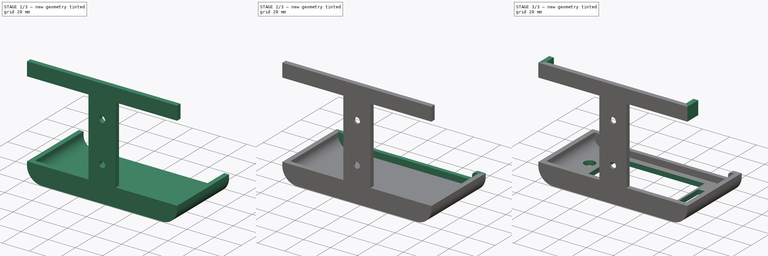
[diagram: build sequence overview — one tinted view per stage of 3, left to right]
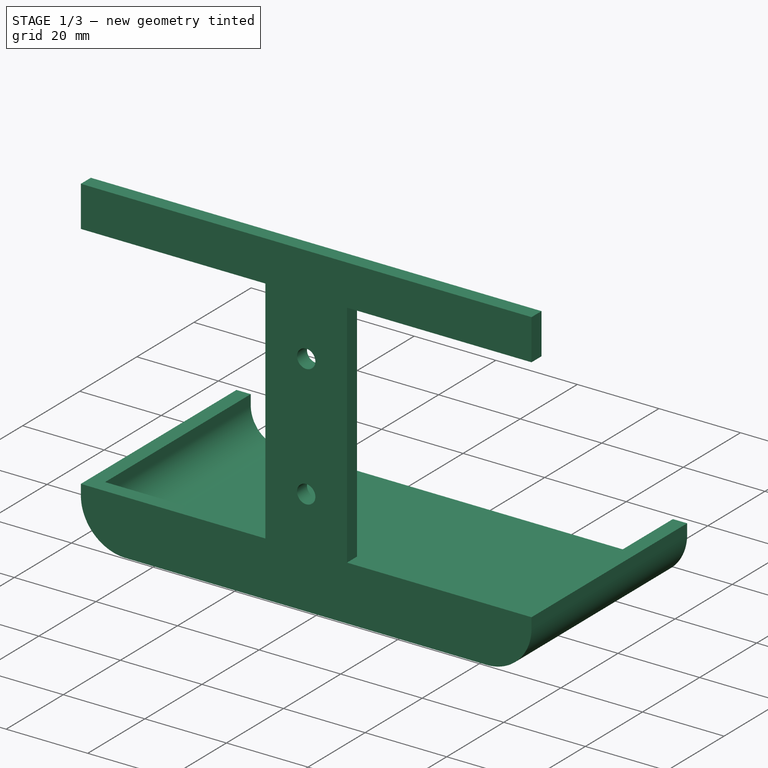
[diagram: stage 1 of 3 — iso view after this stage's code; geometry added in this stage tinted green]
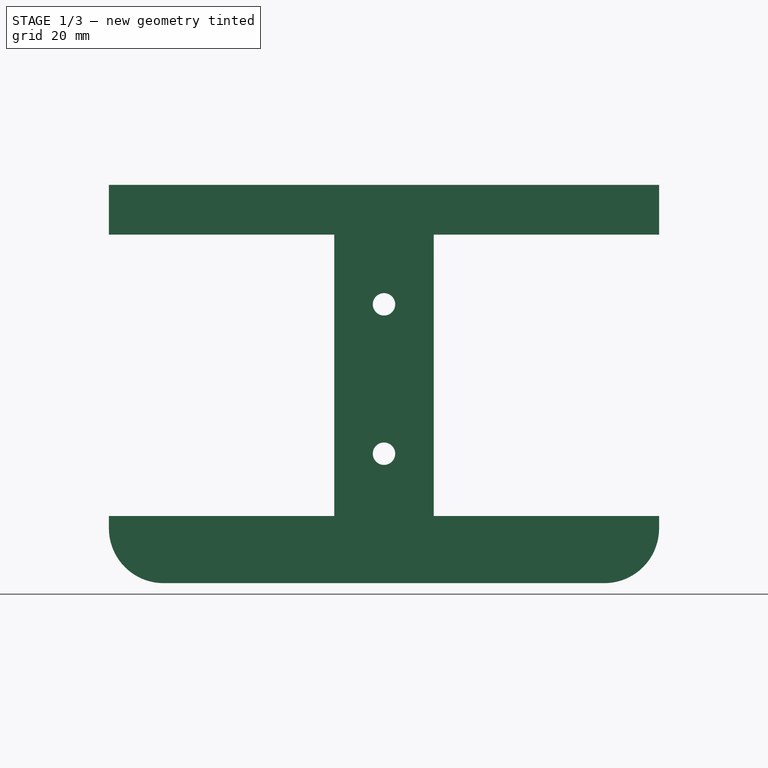
[diagram: stage 1 of 3 — front view after this stage's code; geometry added in this stage tinted green]
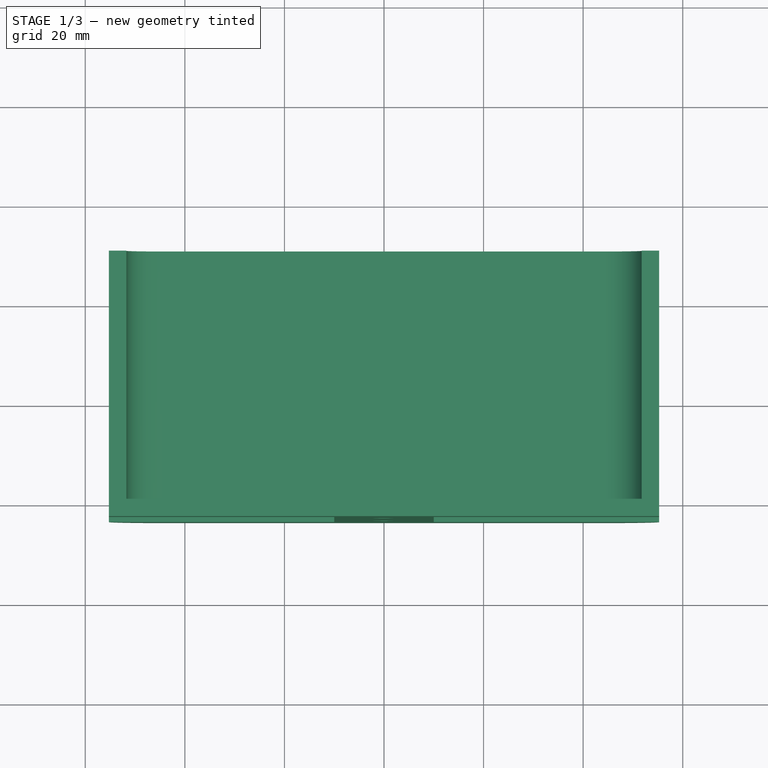
[diagram: stage 1 of 3 — top view after this stage's code; geometry added in this stage tinted green]
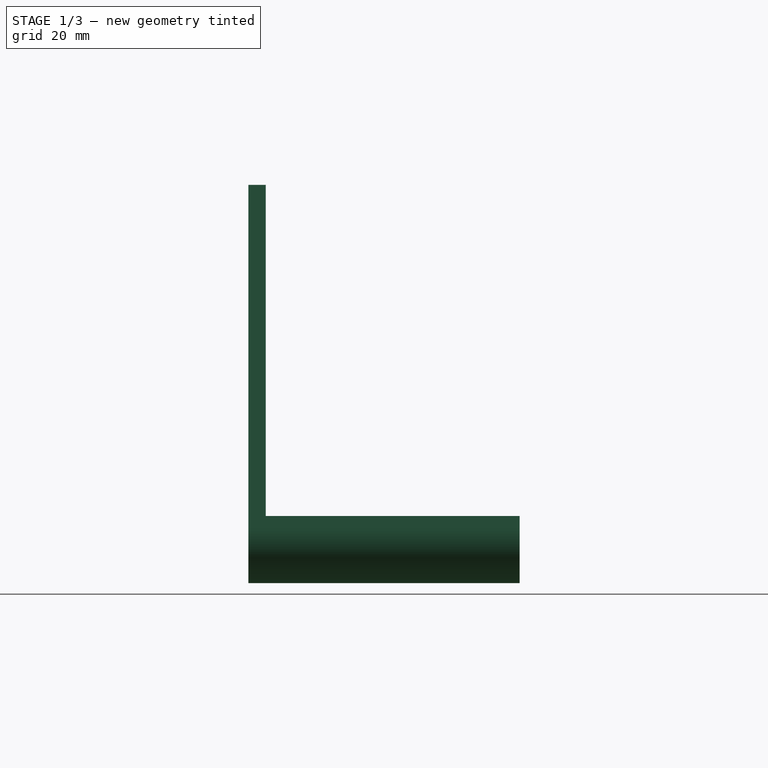
[diagram: stage 1 of 3 — right view after this stage's code; geometry added in this stage tinted green]
FCSTD DOCUMENT  (FreeCAD 1.1RUnknown)
Label: Altruist_Wall_Mount
License: All rights reserved
LicenseURL: https://en.wikipedia.org/wiki/All_rights_reserved
objects: Sketcher::SketchObject×5, PartDesign::Pad×4, PartDesign::Chamfer×1, PartDesign::Pocket×1, App::Point×1, PartDesign::Body×1
note: 29 computed .brp shape members not serialized (recipe doc carries the construction recipe); baked Part::Feature solids carry a one-line shape summary decoded from their .brp

FEATURE [Sketcher::SketchObject] Sketch067
  ArcFitTolerance = 1e-06
  AttachmentSupport = -> [XZ_Plane012]
  ExternalTypes = [0]
  FullyConstrained = true
  MakeInternals = false
  MapMode = 5
  Placement = pos=(0,0,0) rot=(1,0,0;1.5708rad)
  _ExternalGeoVersion = 0
  sketch-geometry (16):
    g0: LineSegment StartX=55.25 StartY=24 StartZ=0 EndX=-55.25 EndY=24 EndZ=0
    g1: LineSegment StartX=-55.25 StartY=24 StartZ=0 EndX=-55.25 EndY=14 EndZ=0
    g2: LineSegment StartX=-55.25 StartY=14 StartZ=0 EndX=-10 EndY=14 EndZ=0
    g3: LineSegment StartX=-10 StartY=14 StartZ=0 EndX=-10 EndY=-42.5 EndZ=0
    g4: LineSegment StartX=-10 StartY=-42.5 StartZ=0 EndX=-55.25 EndY=-42.5 EndZ=0
    g5: LineSegment StartX=-55.25 StartY=-42.5 StartZ=0 EndX=-55.25 EndY=-45 EndZ=0
    g6: LineSegment StartX=55.25 StartY=24 StartZ=0 EndX=55.25 EndY=14 EndZ=0
    g7: LineSegment StartX=55.25 StartY=14 StartZ=0 EndX=10 EndY=14 EndZ=0
    g8: LineSegment StartX=10 StartY=14 StartZ=0 EndX=10 EndY=-42.5 EndZ=0
    g9: LineSegment StartX=10 StartY=-42.5 StartZ=0 EndX=55.25 EndY=-42.5 EndZ=0
    g10: LineSegment StartX=55.25 StartY=-42.5 StartZ=0 EndX=55.25 EndY=-45 EndZ=0
    g11: ArcOfCircle CenterX=44.25 CenterY=-45 CenterZ=0 NormalX=0 NormalY=0 NormalZ=1 AngleXU=0 Radius=11 StartAngle=4.71239 EndAngle=6.28319
    g12: ArcOfCircle CenterX=-44.25 CenterY=-45 CenterZ=0 NormalX=0 NormalY=0 NormalZ=1 AngleXU=0 Radius=11 StartAngle=3.14159 EndAngle=4.71239
    g13: LineSegment StartX=44.25 StartY=-56 StartZ=0 EndX=-44.25 EndY=-56 EndZ=0
    g14: Circle CenterX=0 CenterY=0 CenterZ=0 NormalX=0 NormalY=0 NormalZ=1 AngleXU=0 Radius=2.25
    g15: Circle CenterX=0 CenterY=-30 CenterZ=0 NormalX=0 NormalY=0 NormalZ=1 AngleXU=0 Radius=2.25
  constraints (47):
    c: Horizontal(g0)
    c: Coincident(g0,g1)
    c: Vertical(g1)
    c: Coincident(g1,g2)
    c: Horizontal(g2)
    c: Coincident(g2,g3)
    c: Vertical(g3)
    c: Coincident(g3,g4)
    c: Horizontal(g4)
    c: Coincident(g4,g5)
    c: Vertical(g5)
    c: Coincident(g0,g6)
    c: Vertical(g6)
    c: Coincident(g6,g7)
    c: Horizontal(g7)
    c: Coincident(g7,g8)
    c: Vertical(g8)
    c: Coincident(g8,g9)
    c: Horizontal(g9)
    c: Coincident(g9,g10)
    c: Vertical(g10)
    c: Coincident(g11,g10)
    c: Coincident(g12,g5)
    c: Coincident(g13,g11)
    c: Coincident(g13,g12)
    c: Horizontal(g13)
    c: Symmetric(g7,g2,g-2)
    c: Distance(g3,g8) = 20
    c: Distance(g13,g0) = 80
    c: Horizontal(g10,g11)
    c: Horizontal(g12,g5)
    c: Vertical(g12,g12)
    c: Vertical(g11,g11)
    c: Equal(g12,g11)
    c: Distance(g-1,g13) = 56
    c: Symmetric(g9,g4,g-2)
    c: Distance(g13,g4) = 13.5
    c: DistanceY(g1,g1) = 10
    c: Vertical(g1,g4)
    c: Vertical(g6,g9)
    c: DistanceX(g0,g0) = 110.5
    c: Coincident(g14,g-1)
    c: PointOnObject(g15,g-2)
    c: Equal(g15,g14)
    c: DistanceY(g15,g-1) = 30
    c: Diameter(g14) = 4.5
    c: Radius(g12) = 11
FEATURE [PartDesign::Pad] Pad050
  Direction = (0,-1,2e-16)
  Length = 3.5
  Length2 = 10
  Placement = pos=(0,0,0) rot=(1,0,0;1.5708rad)
  Profile = -> Sketch067
  ReferenceAxis = -> Sketch067 [N_Axis]
  Refine = true
  SideType = 0
  Suppressed = false
  Type = 0
  Type2 = 0
FEATURE [Sketcher::SketchObject] Sketch068
  ArcFitTolerance = 1e-06
  AttachmentSupport = -> [Pad050]
  ExternalTypes = [0]
  FullyConstrained = true
  MakeInternals = false
  MapMode = 5
  Placement = pos=(0,-3.3e-15,0) rot=(-1,0,0;1.5708rad)
  _ExternalGeoVersion = 0
  sketch-geometry (12):
    g0: LineSegment StartX=-55.25 StartY=45 StartZ=0 EndX=-55.25 EndY=42.5 EndZ=0
    g1: LineSegment StartX=-44.25 StartY=56 StartZ=0 EndX=44.25 EndY=56 EndZ=0
    g2: LineSegment StartX=-44.25 StartY=52.5 StartZ=0 EndX=44.25 EndY=52.5 EndZ=0
    g3: LineSegment StartX=-55.25 StartY=42.5 StartZ=0 EndX=-51.75 EndY=42.5 EndZ=0
    g4: LineSegment StartX=55.25 StartY=45 StartZ=0 EndX=55.25 EndY=42.5 EndZ=0
    g5: LineSegment StartX=55.25 StartY=42.5 StartZ=0 EndX=51.75 EndY=42.5 EndZ=0
    g6: LineSegment StartX=51.75 StartY=42.5 StartZ=0 EndX=51.75 EndY=45 EndZ=0
    g7: LineSegment StartX=-51.75 StartY=42.5 StartZ=0 EndX=-51.75 EndY=45 EndZ=0
    g8: ArcOfCircle CenterX=-44.25 CenterY=45 CenterZ=0 NormalX=0 NormalY=0 NormalZ=1 AngleXU=0 Radius=7.5 StartAngle=1.5708 EndAngle=3.14159
    g9: ArcOfCircle CenterX=44.25 CenterY=45 CenterZ=0 NormalX=0 NormalY=0 NormalZ=1 AngleXU=0 Radius=7.5 StartAngle=0 EndAngle=1.5708
    g10: ArcOfCircle CenterX=44.25 CenterY=45 CenterZ=0 NormalX=0 NormalY=0 NormalZ=1 AngleXU=0 Radius=11 StartAngle=0 EndAngle=1.5708
    g11: ArcOfCircle CenterX=-44.25 CenterY=45 CenterZ=0 NormalX=0 NormalY=0 NormalZ=1 AngleXU=0 Radius=11 StartAngle=1.5708 EndAngle=3.14159
  constraints (37):
    c: Vertical(g0)
    c: Horizontal(g1)
    c: Coincident(g3,g0)
    c: Horizontal(g3)
    c: Vertical(g4)
    c: Coincident(g5,g4)
    c: Horizontal(g5)
    c: Coincident(g6,g5)
    c: Vertical(g6)
    c: Coincident(g7,g3)
    c: Vertical(g7)
    c: Coincident(g8,g7)
    c: Coincident(g8,g2)
    c: Coincident(g9,g2)
    c: Coincident(g9,g6)
    c: Coincident(g10,g9)
    c: Coincident(g10,g1)
    c: Coincident(g10,g4)
    c: Coincident(g11,g8)
    c: Coincident(g11,g0)
    c: Coincident(g11,g1)
    c: Vertical(g10,g2)
    c: Vertical(g1,g9)
    c: Horizontal(g6,g9)
    c: Horizontal(g4,g9)
    c: Horizontal(g7,g8)
    c: Horizontal(g0,g8)
    c: Vertical(g8,g2)
    c: Vertical(g1,g8)
    c: Radius(g11) = 11
    c: Radius(g8) = 7.5
    c: Distance(g1,g-1) = 56
    c: Equal(g8,g9)
    c: Horizontal(g5,g3)
    c: DistanceY(g4,g4) = 2.5
    c: Distance(g6,g7) = 103.5
    c: Symmetric(g2,g2,g-2)
FEATURE [PartDesign::Pad] Pad051
  BaseFeature = -> Pad050
  Direction = (0,1,2e-16)
  Length = 51
  Length2 = 10
  Placement = pos=(0,0,0) rot=(1,0,0;1.5708rad)
  Profile = -> Sketch068
  ReferenceAxis = -> Sketch068 [N_Axis]
  Refine = true
  SideType = 0
  Suppressed = false
  Type = 0
  Type2 = 0
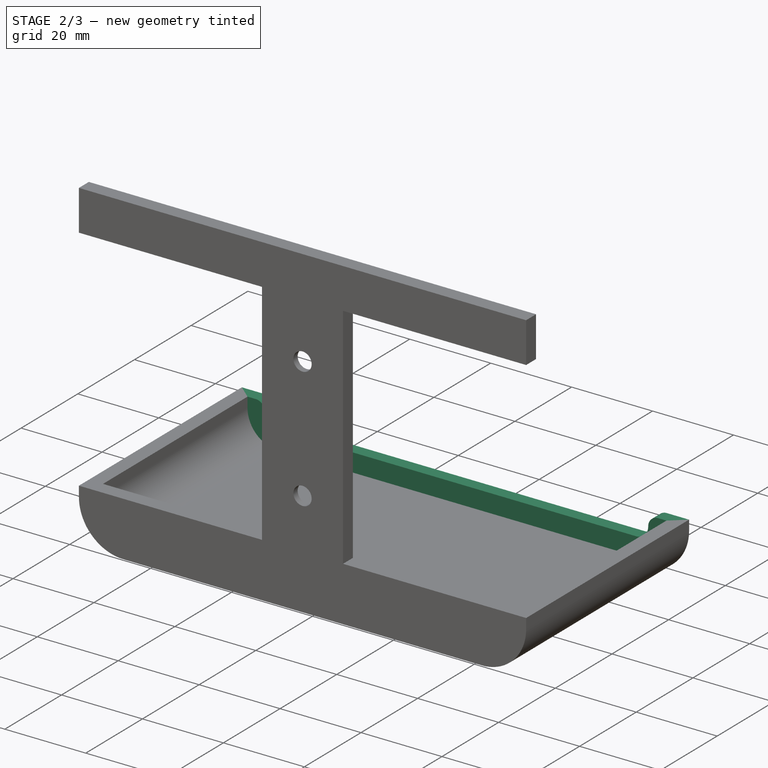
[diagram: stage 2 of 3 — iso view after this stage's code; geometry added in this stage tinted green]
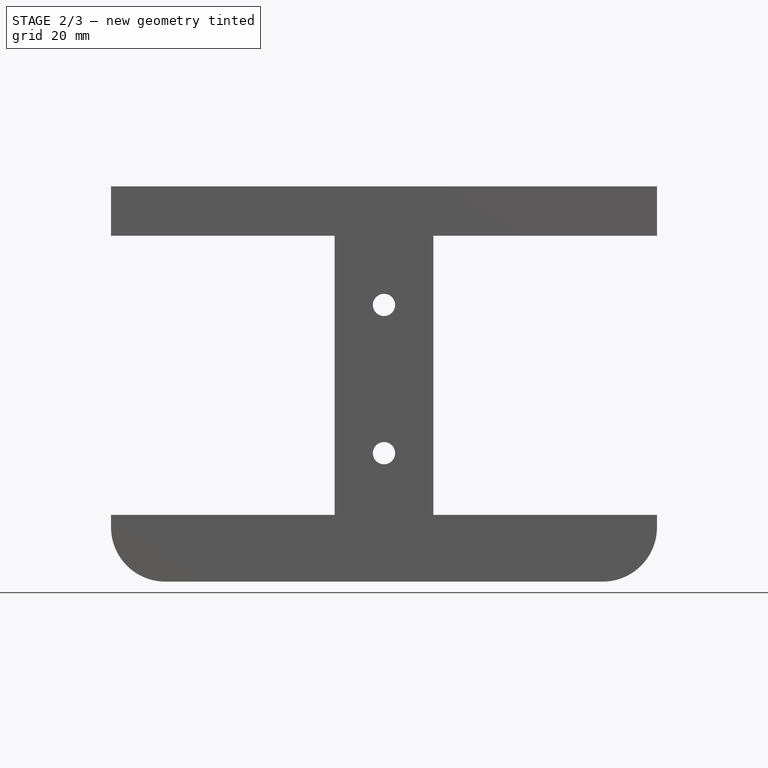
[diagram: stage 2 of 3 — front view after this stage's code; geometry added in this stage tinted green]
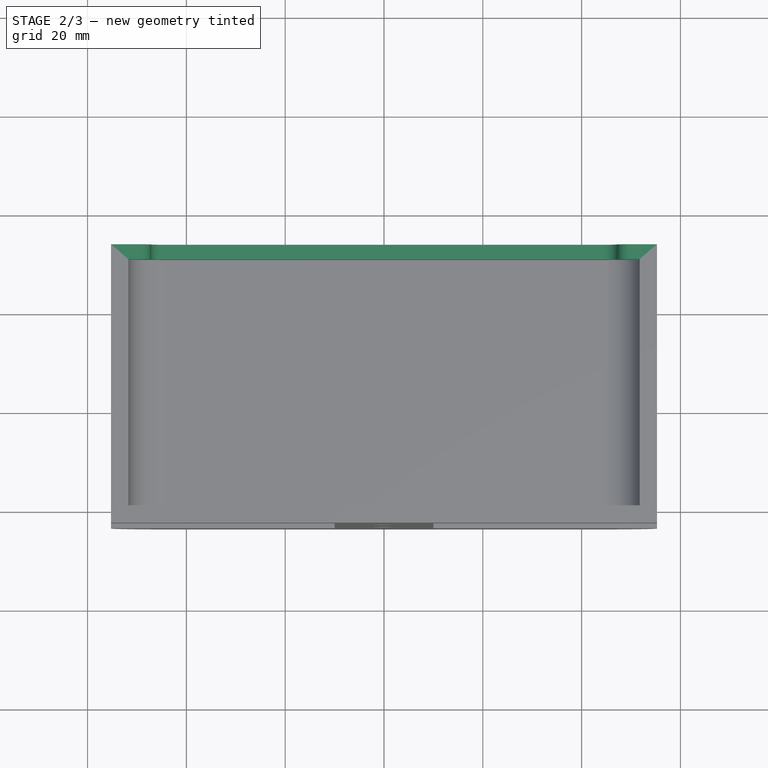
[diagram: stage 2 of 3 — top view after this stage's code; geometry added in this stage tinted green]
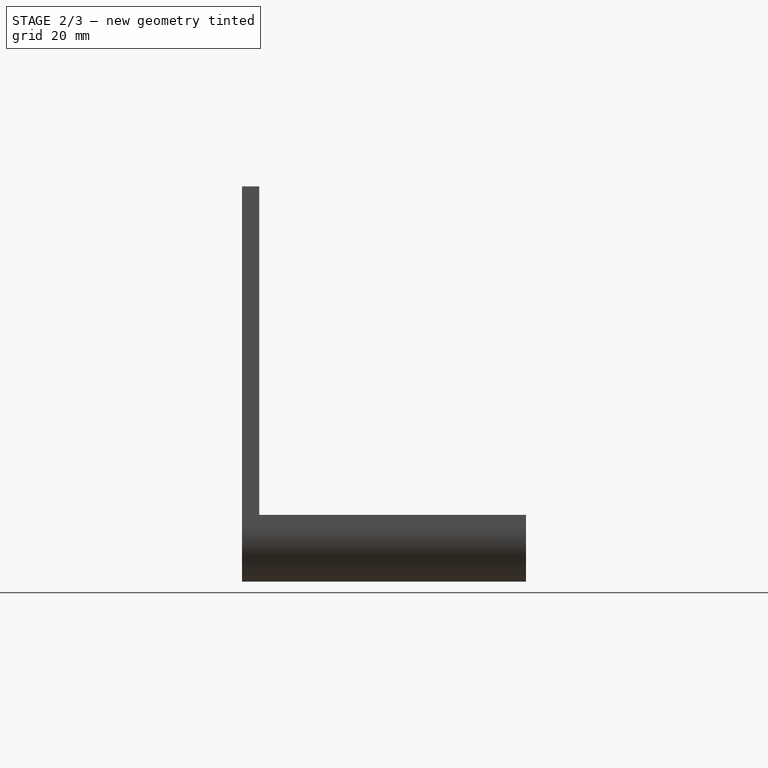
[diagram: stage 2 of 3 — right view after this stage's code; geometry added in this stage tinted green]
FEATURE [Sketcher::SketchObject] Sketch071
  ArcFitTolerance = 1e-06
  AttachmentSupport = -> [Pad051]
  ExternalTypes = [0]
  FullyConstrained = true
  MakeInternals = false
  MapMode = 5
  Placement = pos=(0,-3.3e-15,0) rot=(-1,0,0;1.5708rad)
  _ExternalGeoVersion = 0
  sketch-geometry (8):
    g0: LineSegment StartX=-55.25 StartY=-14 StartZ=0 EndX=-55.25 EndY=-24 EndZ=0
    g1: LineSegment StartX=-55.25 StartY=-24 StartZ=0 EndX=-51.75 EndY=-24 EndZ=0
    g2: LineSegment StartX=-51.75 StartY=-24 StartZ=0 EndX=-51.75 EndY=-14 EndZ=0
    g3: LineSegment StartX=-51.75 StartY=-14 StartZ=0 EndX=-55.25 EndY=-14 EndZ=0
    g4: LineSegment StartX=51.75 StartY=-14 StartZ=0 EndX=51.75 EndY=-24 EndZ=0
    g5: LineSegment StartX=51.75 StartY=-24 StartZ=0 EndX=55.25 EndY=-24 EndZ=0
    g6: LineSegment StartX=55.25 StartY=-24 StartZ=0 EndX=55.25 EndY=-14 EndZ=0
    g7: LineSegment StartX=55.25 StartY=-14 StartZ=0 EndX=51.75 EndY=-14 EndZ=0
  constraints (23):
    c: Coincident(g0,g1)
    c: Coincident(g1,g2)
    c: Coincident(g2,g3)
    c: Coincident(g3,g0)
    c: Vertical(g0)
    c: Vertical(g2)
    c: Horizontal(g1)
    c: Horizontal(g3)
    c: Distance(g0,g2) = 3.5
    c: Distance(g1,g3) = 10
    c: Coincident(g4,g5)
    c: Coincident(g5,g6)
    c: Coincident(g6,g7)
    c: Coincident(g7,g4)
    c: Vertical(g4)
    c: Vertical(g6)
    c: Horizontal(g5)
    c: Horizontal(g7)
    c: Equal(g4,g0)
    c: Equal(g3,g7)
    c: Symmetric(g2,g4,g-2)
    c: Distance(g4,g2) = 103.5
    c: Distance(g-1,g7) = 14
FEATURE [Sketcher::SketchObject] Sketch069
  ArcFitTolerance = 1e-06
  AttachmentSupport = -> [Pad051]
  ExternalTypes = [0]
  FullyConstrained = true
  MakeInternals = false
  MapMode = 5
  Placement = pos=(0,51,0) rot=(-1,0,0;1.5708rad)
  _ExternalGeoVersion = 0
  sketch-geometry (12):
    g0: LineSegment StartX=-55.25 StartY=45 StartZ=0 EndX=-55.25 EndY=42.5 EndZ=0
    g1: LineSegment StartX=-44.25 StartY=56 StartZ=0 EndX=44.25 EndY=56 EndZ=0
    g2: LineSegment StartX=-44.25 StartY=48 StartZ=0 EndX=44.25 EndY=48 EndZ=0
    g3: LineSegment StartX=-55.25 StartY=42.5 StartZ=0 EndX=-49.75 EndY=42.5 EndZ=0
    g4: LineSegment StartX=55.25 StartY=45 StartZ=0 EndX=55.25 EndY=42.5 EndZ=0
    g5: LineSegment StartX=55.25 StartY=42.5 StartZ=0 EndX=49.75 EndY=42.5 EndZ=0
    g6: ArcOfCircle CenterX=-44.25 CenterY=45 CenterZ=0 NormalX=0 NormalY=0 NormalZ=1 AngleXU=0 Radius=3 StartAngle=1.5708 EndAngle=3.14159
    g7: ArcOfCircle CenterX=44.25 CenterY=45 CenterZ=0 NormalX=0 NormalY=0 NormalZ=1 AngleXU=0 Radius=3 StartAngle=0 EndAngle=1.5708
    g8: ArcOfCircle CenterX=44.25 CenterY=45 CenterZ=0 NormalX=0 NormalY=0 NormalZ=1 AngleXU=0 Radius=11 StartAngle=0 EndAngle=1.5708
    g9: ArcOfCircle CenterX=-44.25 CenterY=45 CenterZ=0 NormalX=0 NormalY=0 NormalZ=1 AngleXU=0 Radius=11 StartAngle=1.5708 EndAngle=3.14159
    g10: ArcOfCircle CenterX=49.75 CenterY=45 CenterZ=0 NormalX=0 NormalY=0 NormalZ=1 AngleXU=0 Radius=2.5 StartAngle=3.14159 EndAngle=4.71239
    g11: ArcOfCircle CenterX=-49.75 CenterY=45 CenterZ=0 NormalX=0 NormalY=0 NormalZ=1 AngleXU=0 Radius=2.5 StartAngle=4.71239 EndAngle=6.28319
  constraints (39):
    c: Vertical(g0)
    c: Horizontal(g2)
    c: Coincident(g3,g0)
    c: Horizontal(g3)
    c: Vertical(g4)
    c: Coincident(g5,g4)
    c: Horizontal(g5)
    c: Coincident(g6,g2)
    c: Coincident(g7,g2)
    c: Coincident(g8,g7)
    c: Coincident(g8,g1)
    c: Coincident(g8,g4)
    c: Coincident(g9,g6)
    c: Coincident(g9,g0)
    c: Coincident(g9,g1)
    c: Vertical(g8,g2)
    c: Vertical(g1,g7)
    c: Horizontal(g7,g7)
    c: Horizontal(g4,g7)
    c: Horizontal(g6,g6)
    c: Horizontal(g0,g6)
    c: Vertical(g6,g2)
    c: Vertical(g1,g6)
    c: Radius(g9) = 11
    c: Radius(g6) = 3
    c: Distance(g1,g-1) = 56
    c: Equal(g6,g7)
    c: Horizontal(g5,g3)
    c: DistanceY(g4,g4) = 2.5
    c: Coincident(g10,g7)
    c: Coincident(g10,g5)
    c: Coincident(g11,g6)
    c: Coincident(g11,g3)
    c: Horizontal(g11,g6)
    c: Vertical(g11,g3)
    c: Horizontal(g7,g10)
    c: Vertical(g5,g10)
    c: Symmetric(g1,g1,g-2)
    c: Distance(g4,g0) = 110.5
FEATURE [PartDesign::Pad] Pad052
  BaseFeature = -> Pad051
  Direction = (0,1,2e-16)
  Length = 3
  Length2 = 10
  Placement = pos=(0,0,0) rot=(1,0,0;1.5708rad)
  Profile = -> Sketch069
  ReferenceAxis = -> Sketch069 [N_Axis]
  Refine = true
  SideType = 0
  Suppressed = false
  Type = 0
  Type2 = 0
FEATURE [PartDesign::Chamfer] Chamfer005
  Angle = 45
  Base = -> Pad052 [Edge22,Edge23]
  BaseFeature = -> Pad052
  ChamferType = 0
  FlipDirection = false
  Placement = pos=(0,0,0) rot=(1,0,0;1.5708rad)
  Refine = true
  Size = 2
  Size2 = 1
  SupportTransform = false
  Suppressed = false
  UseAllEdges = false
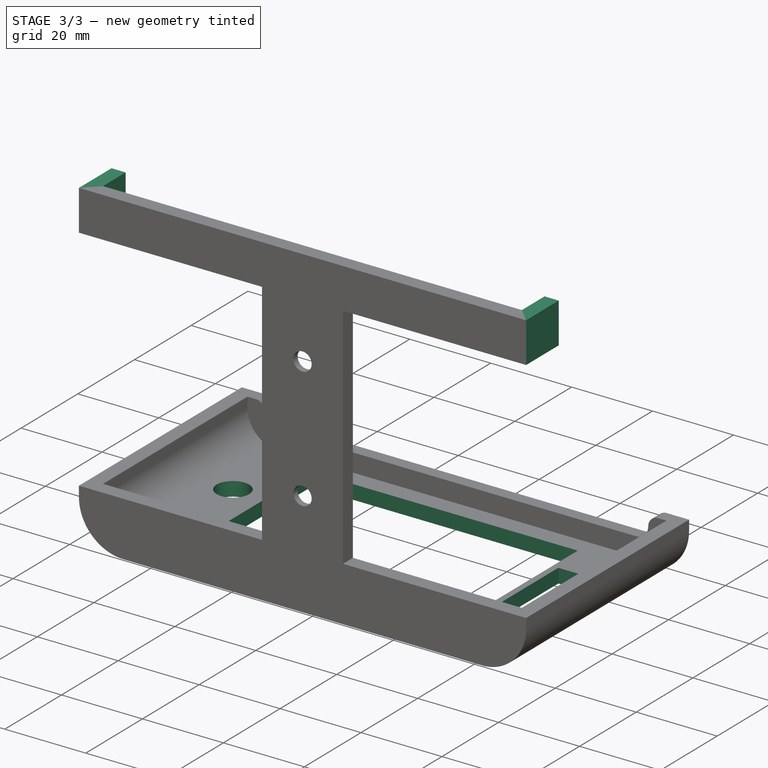
[diagram: stage 3 of 3 — iso view after this stage's code; geometry added in this stage tinted green]
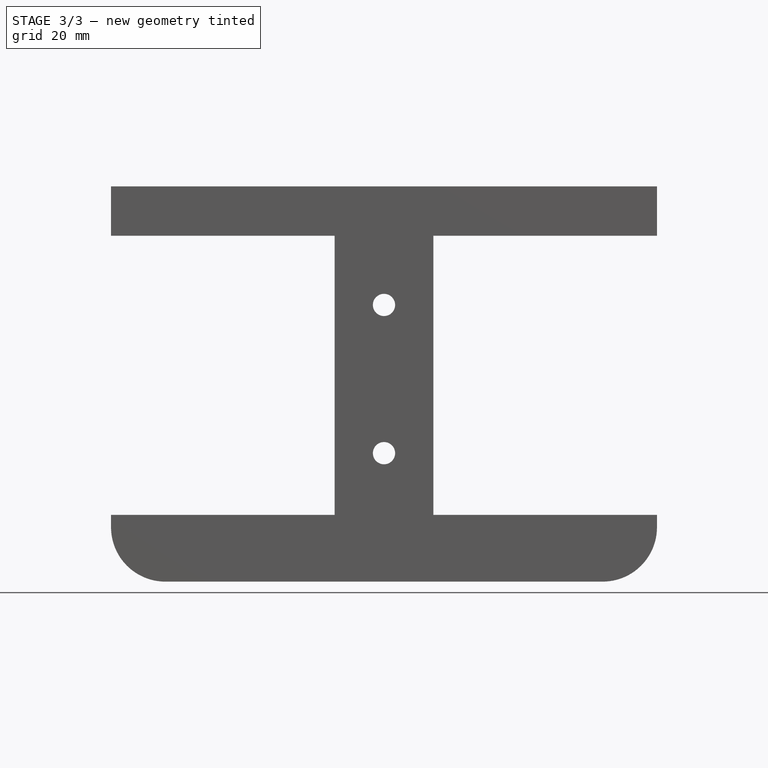
[diagram: stage 3 of 3 — front view after this stage's code; geometry added in this stage tinted green]
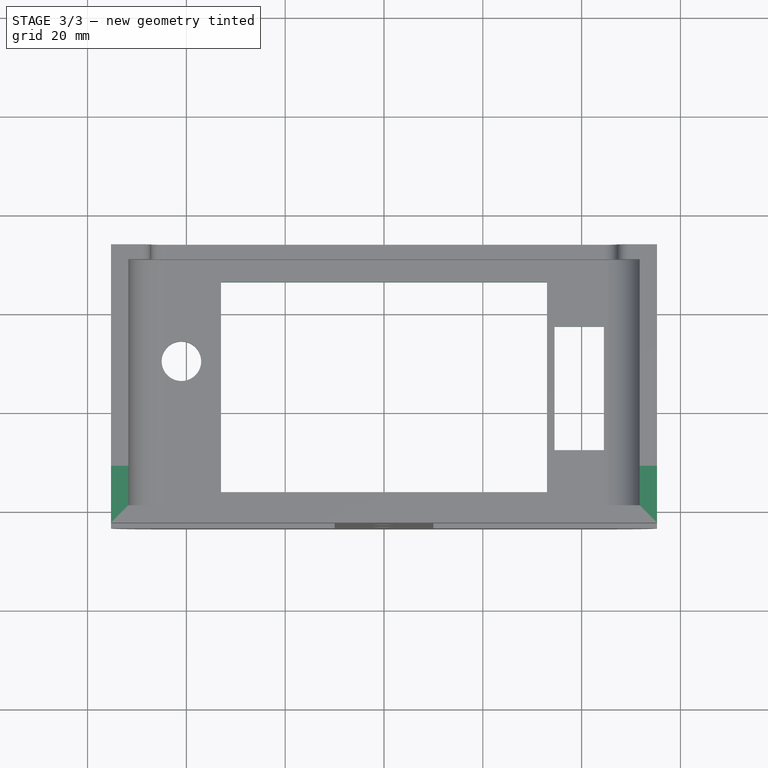
[diagram: stage 3 of 3 — top view after this stage's code; geometry added in this stage tinted green]
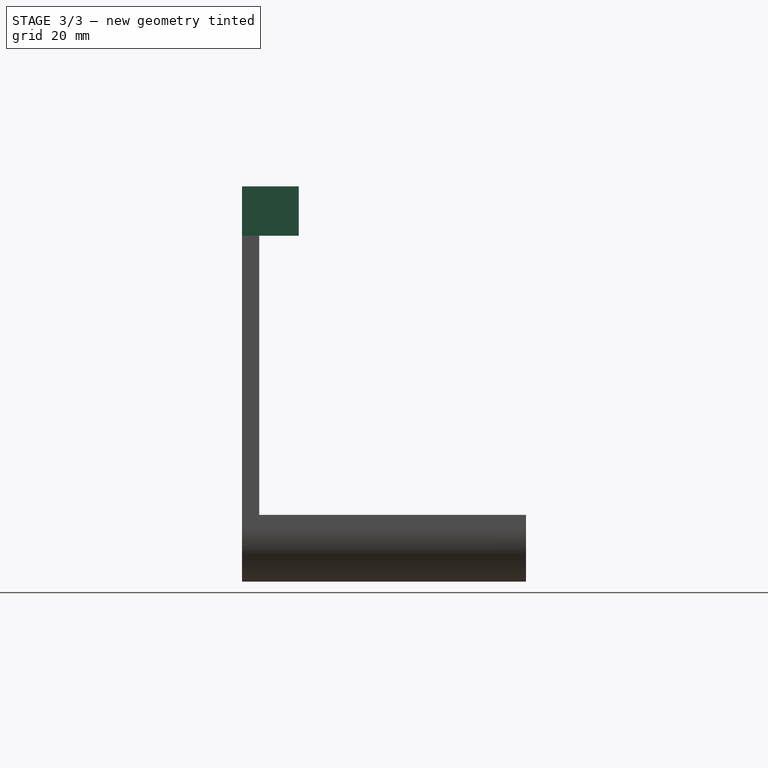
[diagram: stage 3 of 3 — right view after this stage's code; geometry added in this stage tinted green]
FEATURE [Sketcher::SketchObject] Sketch070
  ArcFitTolerance = 1e-06
  AttachmentSupport = -> [Chamfer005]
  ExternalTypes = [0]
  FullyConstrained = true
  MakeInternals = false
  MapMode = 5
  Placement = pos=(0,-1.29e-14,-56) rot=(1,0,0;3.14159rad)
  _ExternalGeoVersion = 0
  sketch-geometry (9):
    g0: LineSegment StartX=-33 StartY=-4 StartZ=0 EndX=-33 EndY=-46.5 EndZ=0
    g1: LineSegment StartX=-33 StartY=-46.5 StartZ=0 EndX=33 EndY=-46.5 EndZ=0
    g2: LineSegment StartX=33 StartY=-46.5 StartZ=0 EndX=33 EndY=-4 EndZ=0
    g3: LineSegment StartX=33 StartY=-4 StartZ=0 EndX=-33 EndY=-4 EndZ=0
    g4: LineSegment StartX=34.5 StartY=-12.5 StartZ=0 EndX=34.5 EndY=-37.5 EndZ=0
    g5: LineSegment StartX=34.5 StartY=-37.5 StartZ=0 EndX=44.5 EndY=-37.5 EndZ=0
    g6: LineSegment StartX=44.5 StartY=-37.5 StartZ=0 EndX=44.5 EndY=-12.5 EndZ=0
    g7: LineSegment StartX=44.5 StartY=-12.5 StartZ=0 EndX=34.5 EndY=-12.5 EndZ=0
    g8: Circle CenterX=-41 CenterY=-30.5 CenterZ=0 NormalX=0 NormalY=0 NormalZ=1 AngleXU=0 Radius=4
  constraints (26):
    c: Coincident(g0,g1)
    c: Coincident(g1,g2)
    c: Coincident(g2,g3)
    c: Coincident(g3,g0)
    c: Vertical(g0)
    c: Vertical(g2)
    c: Horizontal(g3)
    c: Coincident(g4,g5)
    c: Coincident(g5,g6)
    c: Coincident(g6,g7)
    c: Coincident(g7,g4)
    c: Vertical(g4)
    c: Vertical(g6)
    c: Horizontal(g5)
    c: Horizontal(g7)
    c: DistanceY(g0,g0) = 42.5
    c: DistanceX(g3,g3) = 66
    c: Symmetric(g0,g1,g-2)
    c: DistanceY(g6,g6) = 25
    c: DistanceX(g7,g7) = 10
    c: Distance(g-1,g3) = 4
    c: Distance(g-1,g7) = 12.5
    c: DistanceY(g8,g-1) = 30.5
    c: Distance(g8,g-2) = 41
    c: Diameter(g8) = 8
    c: Distance(g-2,g4) = 34.5
FEATURE [PartDesign::Pocket] Pocket033
  BaseFeature = -> Chamfer005
  Direction = (0,0,1)
  Length = 5
  Length2 = 5
  Placement = pos=(0,0,0) rot=(1,0,0;1.5708rad)
  Profile = -> Sketch070
  ReferenceAxis = -> Sketch070 [N_Axis]
  Refine = true
  SideType = 0
  Suppressed = false
  Type = 1
  Type2 = 0
FEATURE [PartDesign::Pad] Pad053
  BaseFeature = -> Pocket033
  Direction = (0,1,2e-16)
  Length = 8
  Length2 = 10
  Placement = pos=(0,0,0) rot=(1,0,0;1.5708rad)
  Profile = -> Sketch071
  ReferenceAxis = -> Sketch071 [N_Axis]
  Refine = true
  SideType = 0
  Suppressed = false
  Type = 0
  Type2 = 0
FEATURE [App::Point] Origin023  label="Origin"
  Role = Origin
FEATURE [PartDesign::Body] Body012  label="Wall_Mount"
  AllowCompound = false
  Group = -> [Sketch067,Pad050,Sketch068,Pad051,Sketch069,Pad052,Chamfer005,Sketch070,Pocket033,Sketch071,Pad053]
  Origin = -> Origin012
  Tip = -> Pad053
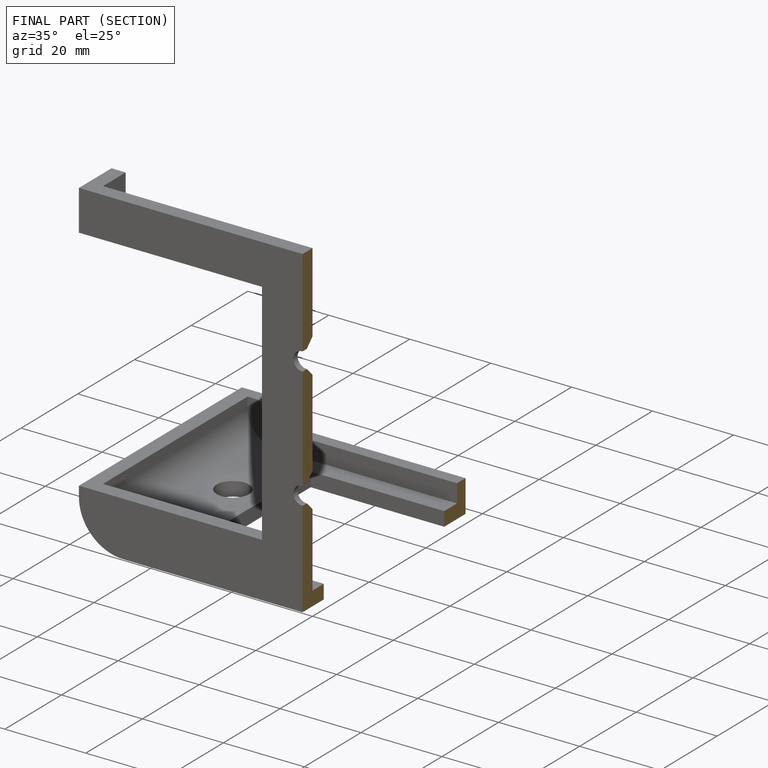
[diagram: finished part — half-section view (interior)]
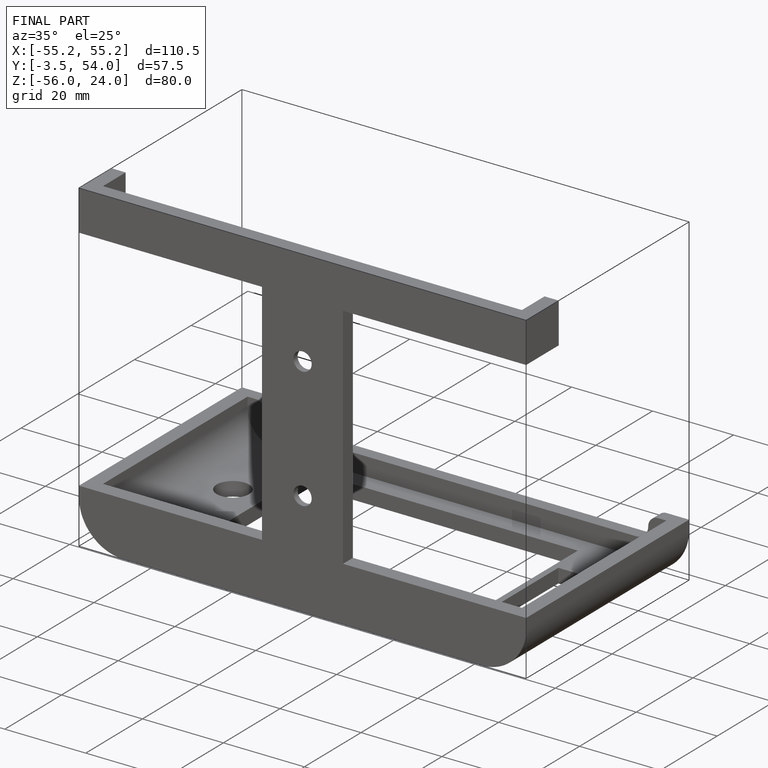
[diagram: finished part — iso view with bounding-box wireframe]
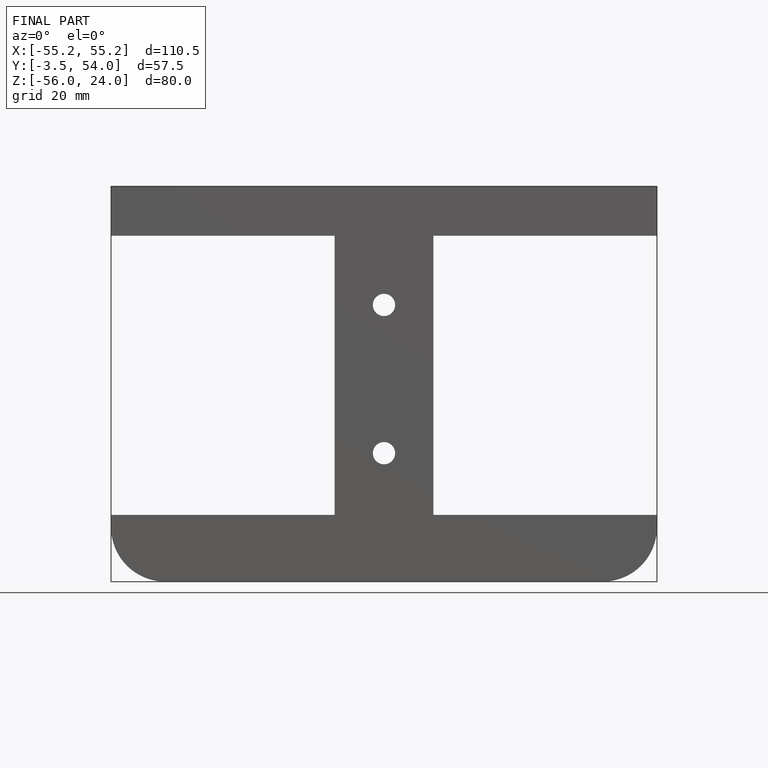
[diagram: finished part — front view with bounding-box wireframe]
